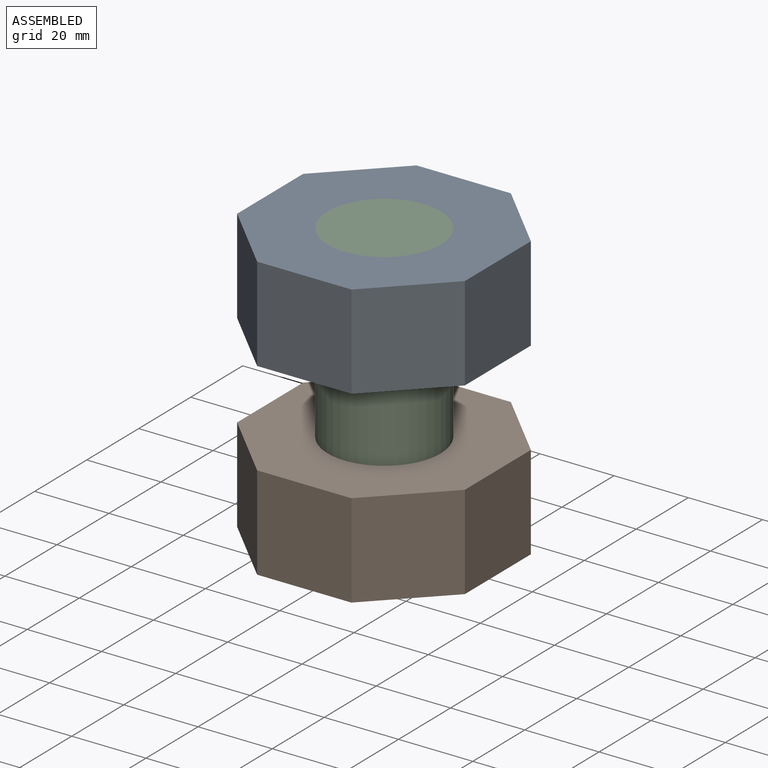
[diagram: assembled view]
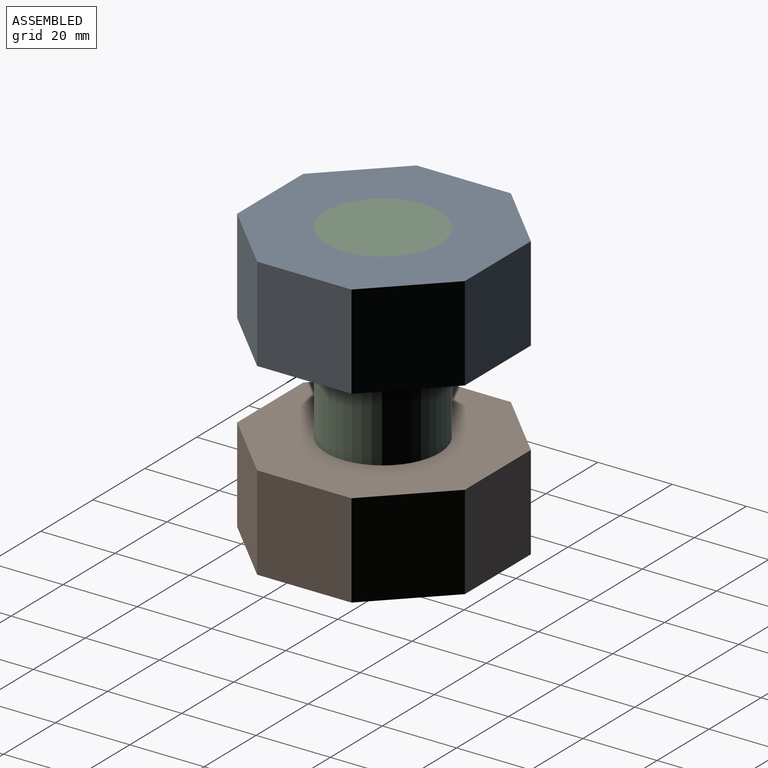
[diagram: assembled view, second angle]
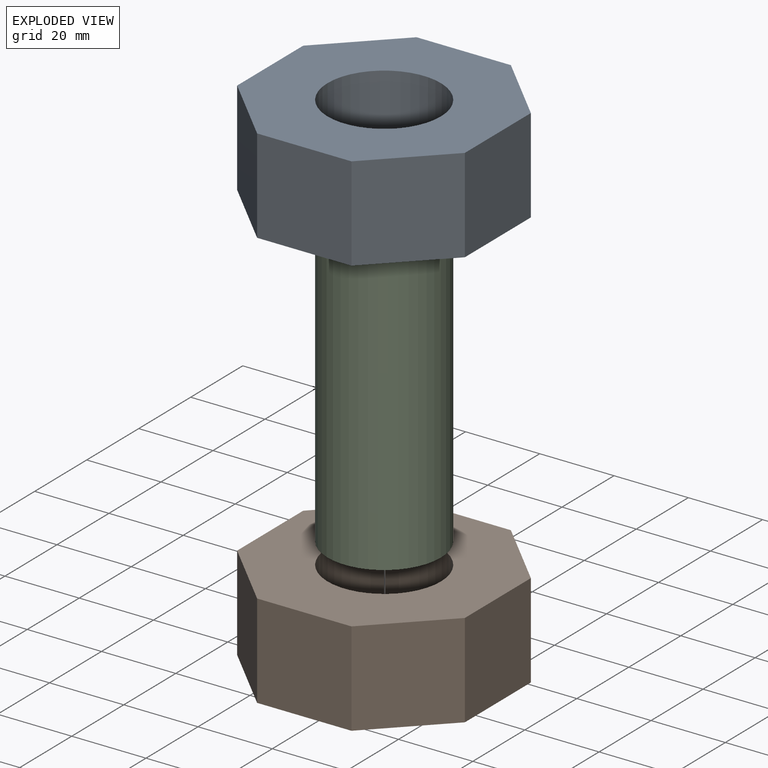
[diagram: exploded view]
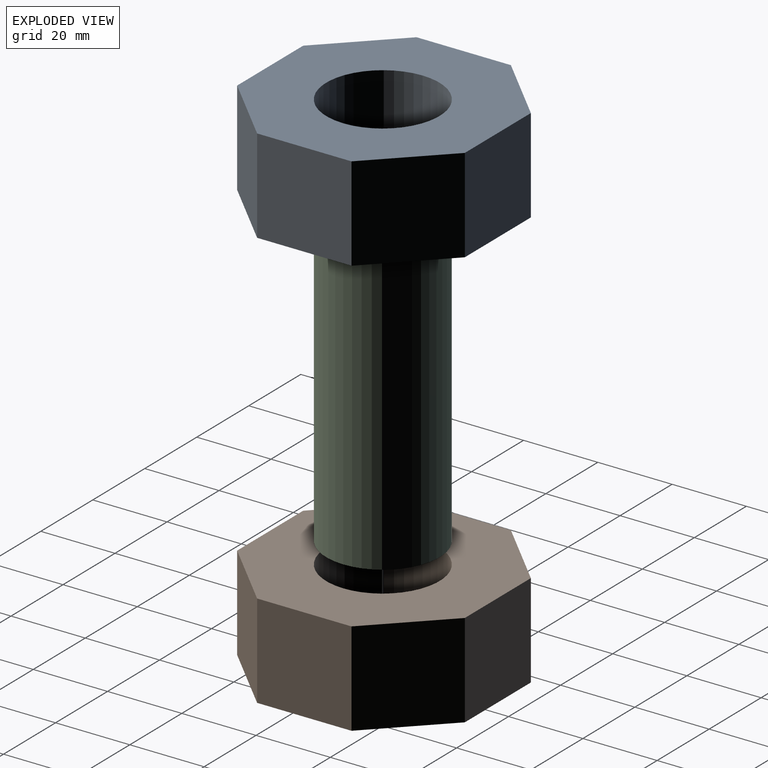
[diagram: exploded view, second angle]
ASSEMBLY  parts=3 mates=2
PART A: 11 faces, bbox 61.3x61.3x25.4 mm
  f0: plane 25.4x17.96mm, normal (-0.71,0.71,0), area 645.2mm2, adj f1,f8,f9,f10
  f1: plane 25.4x25.4mm, normal (-1,0,0), area 645.2mm2, adj f0,f2,f9,f10
  f2: plane 25.4x17.96mm, normal (-0.71,-0.71,0), area 645.2mm2, adj f1,f3,f9,f10
  f3: plane 25.4x25.4mm, normal (0,-1,0), area 645.2mm2, adj f2,f4,f9,f10
  f4: plane 25.4x17.96mm, normal (0.71,-0.71,0), area 645.2mm2, adj f3,f5,f9,f10
  f5: plane 25.4x25.4mm, normal (1,0,0), area 645.2mm2, adj f4,f6,f9,f10
  f6: plane 25.4x17.96mm, normal (0.71,0.71,0), area 645.2mm2, adj f5,f8,f9,f10
  f7: cylinder r=15.24mm len=30.48mm, axis (0,0,-1), area 2432.2mm2, adj f9,f10
  f8: plane 25.4x25.4mm, normal (0,1,0), area 645.2mm2, adj f0,f6,f9,f10
  f9: plane 61.32x61.32mm, normal (0,0,1), area 2385.4mm2, adj f0,f1,f2,f3,f4,f5,f6,f7
  f10: plane 61.32x61.32mm, normal (0,0,-1), area 2385.4mm2, adj f0,f1,f2,f3,f4,f5,f6,f7
PART B: same geometry as A
PART C: 3 faces, bbox 30.5x30.5x76.2 mm
  f0: cylinder r=15.24mm len=76.2mm, axis (0,0,-1), area 7296.6mm2, adj f1,f2
  f1: plane 30.48x30.48mm, normal (0,0,1), area 729.7mm2, adj f0
  f2: plane 30.48x30.48mm, normal (0,0,-1), area 729.7mm2, adj f0
PLACE A t=(-1.45,25.13,51.66)mm
PLACE B t=(-1.45,25.13,0.86)mm
PLACE C t=(-1.45,25.13,0.86)mm
MATE fastened B.f7 <-> C.f0  axis (0,0,-1) through (-1.45,25.13,0.86)mm
MATE fastened A.f7 <-> C.f0  axis (0,0,1) through (-1.45,25.13,77.06)mm
